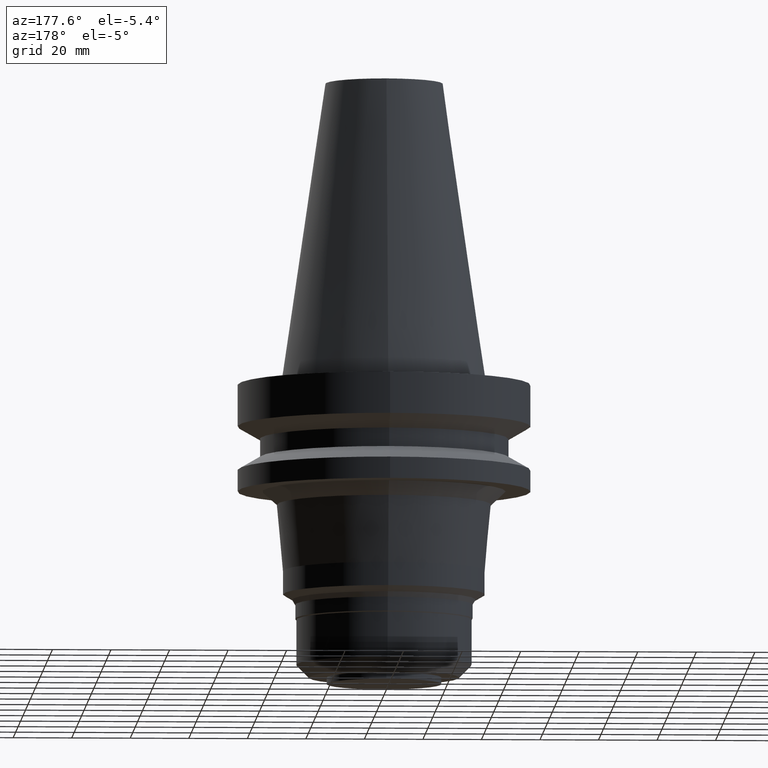
[diagram: clean part render]
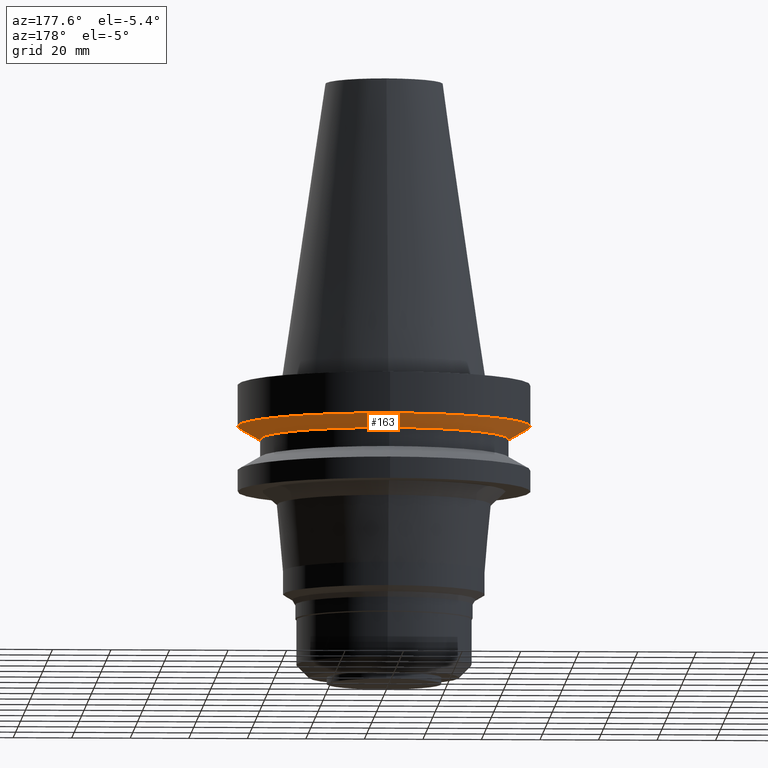
[diagram: same view with one face highlighted and labeled with its STEP entity id]
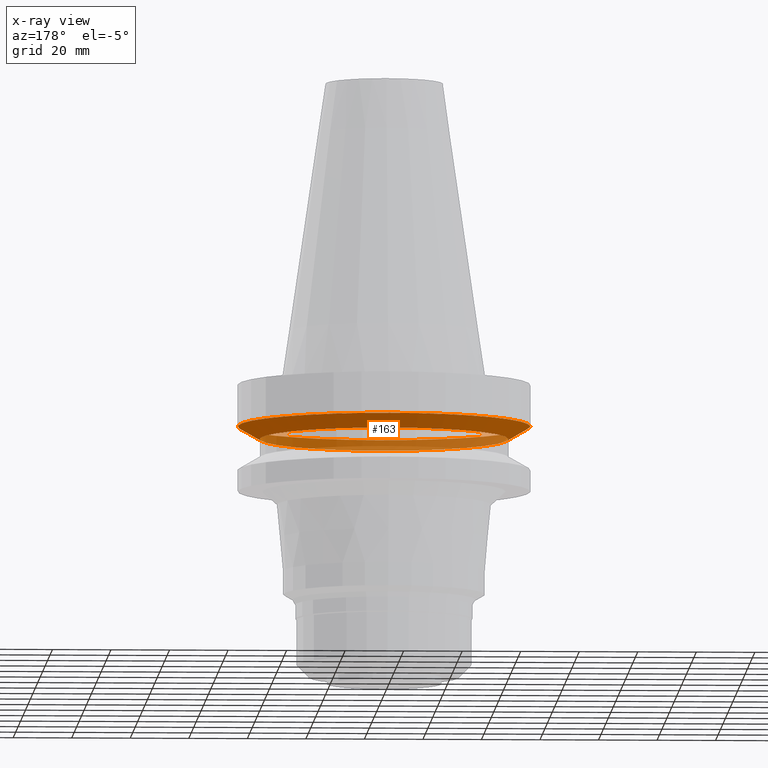
[diagram: x-ray of the same camera — body ghosted, the highlighted face saturated]
A machine part, auxiliary view. The second image highlights one B-rep face of the part: STEP entity #163.
The next image is the same camera in x-ray: the body ghosted, the highlighted face saturated — about 36% of this face is hidden behind the body in this view.
In plain terms, the highlighted conical surface has half-angle 60 deg.
Its self-contained STEP definition (entity closure, byte-faithful):
#107=EDGE_CURVE('Unnamed[1]',#254,#254,#255,.T.);
#111=EDGE_CURVE('Unnamed[1]',#260,#260,#261,.T.);
#163=ADVANCED_FACE('Unnamed[1]',(#342,#343),#344,.T.);
#254=VERTEX_POINT('',#450);
#255=CIRCLE('',#451,42.5);
#260=VERTEX_POINT('',#458);
#261=CIRCLE('',#459,50.0);
#342=FACE_BOUND('',#560,.T.);
#343=FACE_BOUND('',#561,.T.);
#344=CONICAL_SURFACE('',#562,46.25,1.04719755108882);
#450=CARTESIAN_POINT('',(1.2264915470779E-015,42.5,-20.03012702));
#451=AXIS2_PLACEMENT_3D('',#655,#656,#657);
#458=CARTESIAN_POINT('',(9.61347737330674E-016,50.0,-15.7));
#459=AXIS2_PLACEMENT_3D('',#661,#662,#663);
#560=EDGE_LOOP('',(#754));
#561=EDGE_LOOP('',(#755));
#562=AXIS2_PLACEMENT_3D('',#756,#757,#758);
#655=CARTESIAN_POINT('',(1.2264915470779E-015,2.45298309415579E-015,-20.03012702));
#656=DIRECTION('',(6.12323399573677E-017,1.22464679914763E-016,-1.0));
#657=DIRECTION('',(-1.23259516440783E-032,1.0,1.22464679914763E-016));
#661=CARTESIAN_POINT('',(9.61347737330675E-016,1.92269547466135E-015,-15.7));
#662=DIRECTION('',(6.12323399573677E-017,1.22464679914672E-016,-1.0));
#663=DIRECTION('',(-1.23259516440783E-032,1.0,1.22464679914672E-016));
#754=ORIENTED_EDGE('',*,*,#107,.F.);
#755=ORIENTED_EDGE('',*,*,#111,.T.);
#756=CARTESIAN_POINT('',(1.09391964220429E-015,2.18783928440857E-015,-17.86506351));
#757=DIRECTION('',(-6.12323399573676E-017,-1.22464679914748E-016,1.0));
#758=DIRECTION('',(-1.23259516440783E-032,1.0,1.22464679914748E-016));